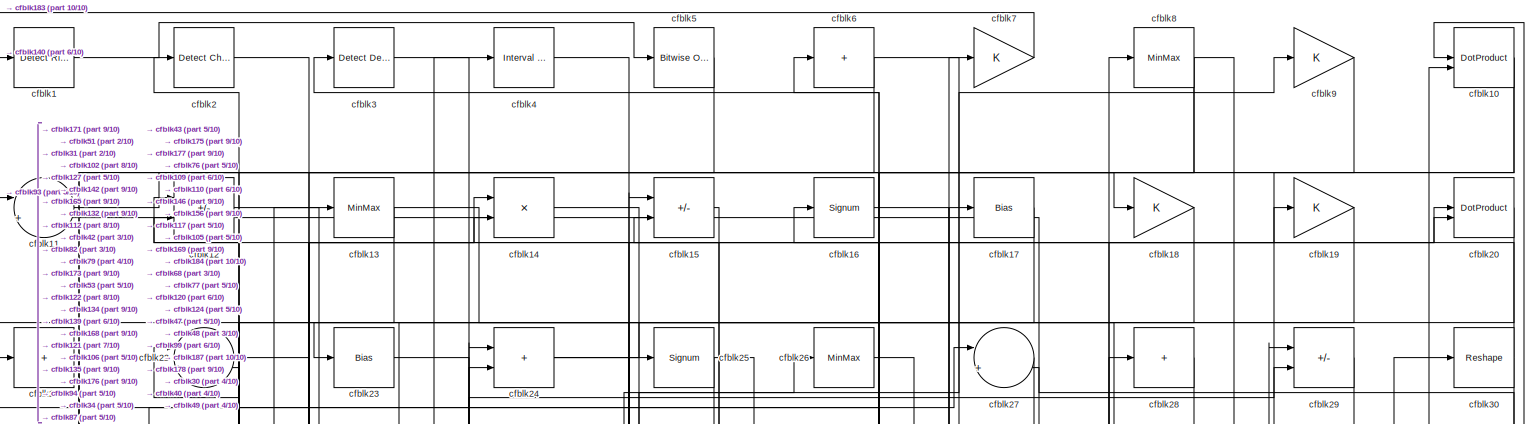
[diagram: root canvas - part 1/10, full width, top band]
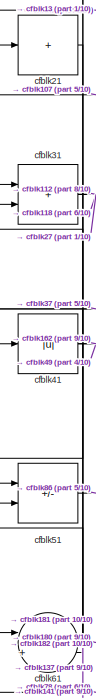
[diagram: root canvas - part 2/10, top left region]
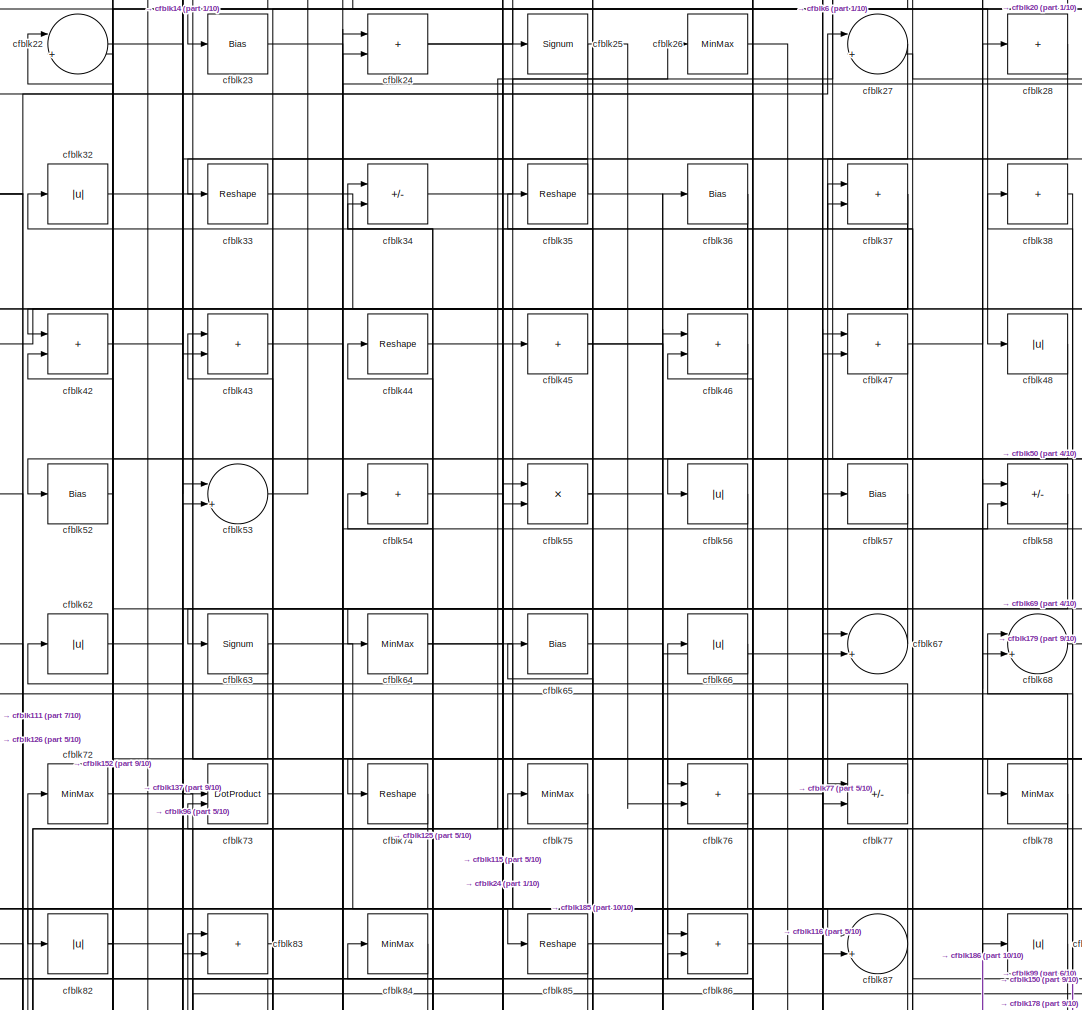
[diagram: root canvas - part 3/10, top center region]
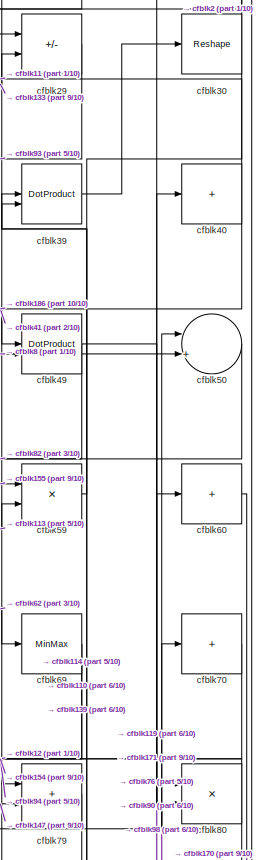
[diagram: root canvas - part 4/10, top right region]
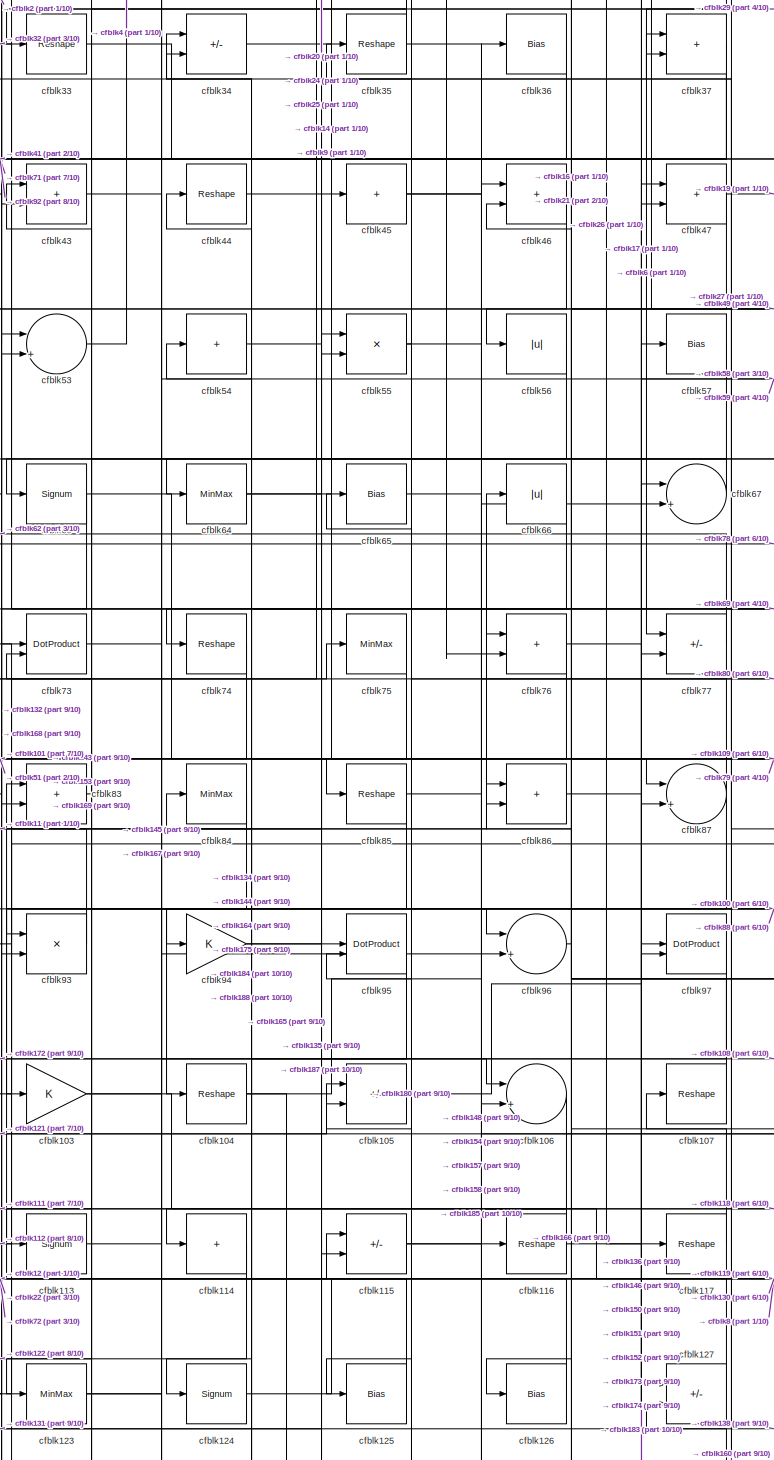
[diagram: root canvas - part 5/10, central region]
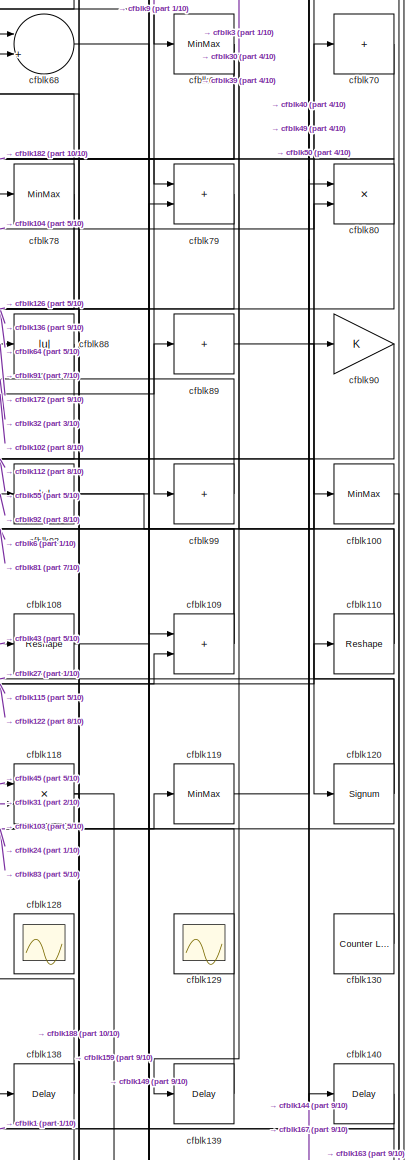
[diagram: root canvas - part 6/10, middle right region]
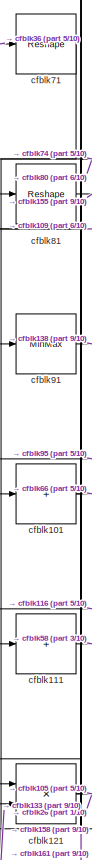
[diagram: root canvas - part 7/10, middle left region]
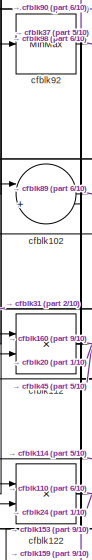
[diagram: root canvas - part 8/10, middle left region]
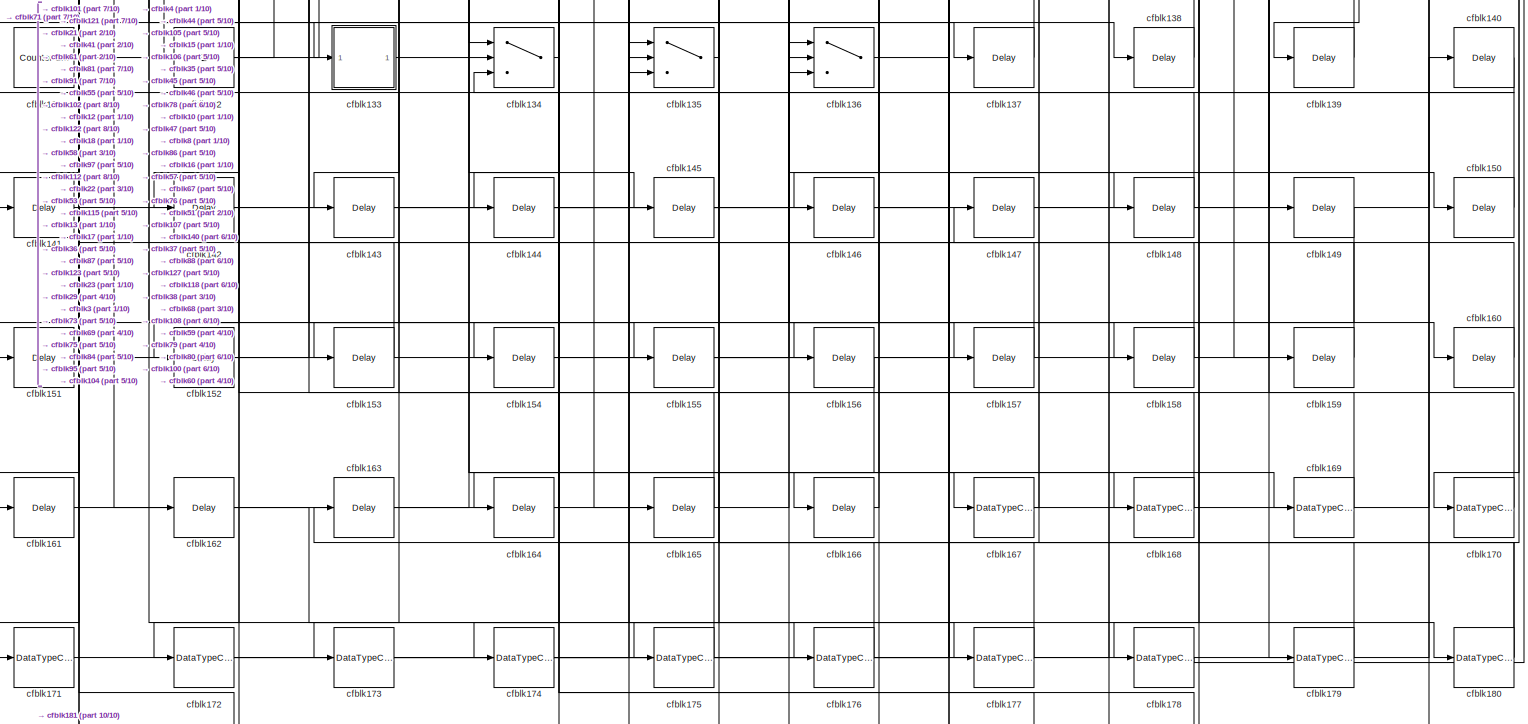
[diagram: root canvas - part 9/10, full width, bottom band]
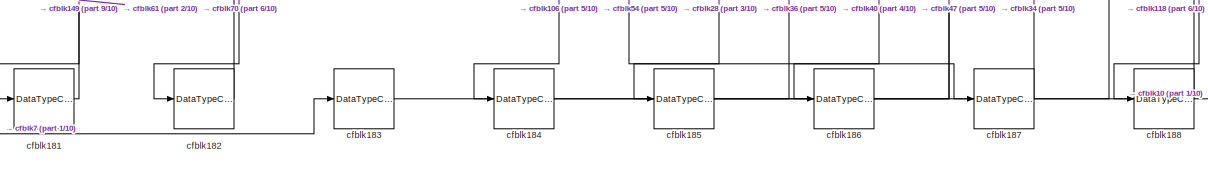
[diagram: root canvas - part 10/10, full width, bottom band]
MODEL slx_cefa9727f244
KIND model
CONFIG AbsTol = auto
CONFIG EnableMultiTasking = off
CONFIG FixedStep = auto
CONFIG MaxStep = auto
CONFIG MinStep = auto
CONFIG RelTol = 1e-3
CONFIG SampleTimeConstraint = Unconstrained
CONFIG SolverName = VariableStepAuto
CONFIG StartTime = 0.0
CONFIG StopTime = 10.0
BLOCK [Reference] cfblk1  REF=hdlsllib/Logic and Bit
Operations/Detect Rise
Positive
  SourceBlock = hdlsllib/Logic and Bit\nOperations/Detect Rise\nPositive
  SourceType = Detect Rise Positive
BLOCK [DotProduct] cfblk10
  OutDataTypeStr = Inherit: Inherit via internal rule
BLOCK [MinMax] cfblk100
BLOCK [Sum] cfblk101
  IconShape = rectangular
  Inputs = +
BLOCK [Sum] cfblk102
  Inputs = |++
BLOCK [Gain] cfblk103
BLOCK [Reshape] cfblk104
BLOCK [Sum] cfblk105
  IconShape = rectangular
  Inputs = +-
BLOCK [Sum] cfblk106
  Inputs = |++
BLOCK [Reshape] cfblk107
BLOCK [Reshape] cfblk108
BLOCK [Sum] cfblk109
  IconShape = rectangular
BLOCK [Sum] cfblk11
  Inputs = |++
BLOCK [Reshape] cfblk110
BLOCK [Sum] cfblk111
  IconShape = rectangular
  Inputs = +
BLOCK [Product] cfblk112
  Inputs = */
  RndMeth = Zero
  SaturateOnIntegerOverflow = on
BLOCK [Signum] cfblk113
BLOCK [Sum] cfblk114
  IconShape = rectangular
  Inputs = +
BLOCK [Sum] cfblk115
  IconShape = rectangular
  Inputs = +-
BLOCK [Reshape] cfblk116
BLOCK [Reshape] cfblk117
BLOCK [Product] cfblk118
  Inputs = */
  RndMeth = Zero
  SaturateOnIntegerOverflow = on
BLOCK [MinMax] cfblk119
BLOCK [Sum] cfblk12
  IconShape = rectangular
  Inputs = +-
BLOCK [Signum] cfblk120
BLOCK [Product] cfblk121
  Inputs = */
  RndMeth = Zero
  SaturateOnIntegerOverflow = on
BLOCK [Product] cfblk122
  Inputs = */
  RndMeth = Zero
  SaturateOnIntegerOverflow = on
BLOCK [MinMax] cfblk123
BLOCK [Signum] cfblk124
BLOCK [Bias] cfblk125
  Bias = 0.0
  SaturateOnIntegerOverflow = off
BLOCK [Bias] cfblk126
  Bias = 0.0
  SaturateOnIntegerOverflow = off
BLOCK [Sum] cfblk127
  IconShape = rectangular
  Inputs = +-
BLOCK [Scope] cfblk128
  Floating = on
  NumInputPorts = 1
  ScopeSpecificationString = Simulink.scopes.TimeScopeBlockCfg('CurrentConfiguration', extmgr.ConfigurationSet(extmgr.Configuration('Core','General UI',true,'FigureColor',[0.156862745098039 0.156862745098039 0.156862745098039]),extmgr.Configuration('Core','Source UI',true),extmgr.Configuration('Sources','WiredSimulink',true,'DataLoggingVariableName','ScopeData1','DataLoggingSaveFormat','StructureWithTime','DataLoggingLimitDat...<+2713ch>
BLOCK [Scope] cfblk129
  Floating = on
  NumInputPorts = 1
  ScopeSpecificationString = Simulink.scopes.TimeScopeBlockCfg('CurrentConfiguration', extmgr.ConfigurationSet(extmgr.Configuration('Core','General UI',true,'FigureColor',[0.156862745098039 0.156862745098039 0.156862745098039]),extmgr.Configuration('Core','Source UI',true),extmgr.Configuration('Sources','WiredSimulink',true,'DataLoggingVariableName','ScopeData1','DataLoggingSaveFormat','StructureWithTime','DataLoggingLimitDat...<+2713ch>
BLOCK [MinMax] cfblk13
BLOCK [Reference] cfblk130  REF=hdlsllib/Sources/Counter
Limited
  SourceBlock = hdlsllib/Sources/Counter\nLimited
  SourceType = Counter Limited
BLOCK [Reference] cfblk131  REF=hdlsllib/Sources/Counter
Limited
  SourceBlock = hdlsllib/Sources/Counter\nLimited
  SourceType = Counter Limited
BLOCK [Ground] cfblk132
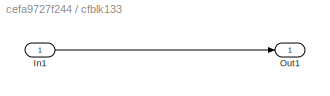
BLOCK [SubSystem] cfblk133
  LibrarySourceBlock = hdlsllib/Ports &\nSubsystems/Subsystem
BLOCK [Inport] cfblk133/In1
BLOCK [Outport] cfblk133/Out1
BLOCK [Switch] cfblk134
  InputSameDT = off
  SaturateOnIntegerOverflow = off
BLOCK [Switch] cfblk135
  InputSameDT = off
  SaturateOnIntegerOverflow = off
BLOCK [Switch] cfblk136
  InputSameDT = off
  SaturateOnIntegerOverflow = off
BLOCK [Delay] cfblk137
  InputPortMap = u0
  SampleTime = 1
BLOCK [Delay] cfblk138
  InputPortMap = u0
  SampleTime = 1
BLOCK [Delay] cfblk139
  InputPortMap = u0
  SampleTime = 1
BLOCK [Product] cfblk14
  Inputs = */
  RndMeth = Zero
  SaturateOnIntegerOverflow = on
BLOCK [Delay] cfblk140
  InputPortMap = u0
  SampleTime = 1
BLOCK [Delay] cfblk141
  InputPortMap = u0
  SampleTime = 1
BLOCK [Delay] cfblk142
  InputPortMap = u0
  SampleTime = 1
BLOCK [Delay] cfblk143
  InputPortMap = u0
  SampleTime = 1
BLOCK [Delay] cfblk144
  InputPortMap = u0
  SampleTime = 1
BLOCK [Delay] cfblk145
  InputPortMap = u0
  SampleTime = 1
BLOCK [Delay] cfblk146
  InputPortMap = u0
  SampleTime = 1
BLOCK [Delay] cfblk147
  InputPortMap = u0
  SampleTime = 1
BLOCK [Delay] cfblk148
  InputPortMap = u0
  SampleTime = 1
BLOCK [Delay] cfblk149
  InputPortMap = u0
  SampleTime = 1
BLOCK [Sum] cfblk15
  IconShape = rectangular
  Inputs = +-
BLOCK [Delay] cfblk150
  InputPortMap = u0
  SampleTime = 1
BLOCK [Delay] cfblk151
  InputPortMap = u0
  SampleTime = 1
BLOCK [Delay] cfblk152
  InputPortMap = u0
  SampleTime = 1
BLOCK [Delay] cfblk153
  InputPortMap = u0
  SampleTime = 1
BLOCK [Delay] cfblk154
  InputPortMap = u0
  SampleTime = 1
BLOCK [Delay] cfblk155
  InputPortMap = u0
  SampleTime = 1
BLOCK [Delay] cfblk156
  InputPortMap = u0
  SampleTime = 1
BLOCK [Delay] cfblk157
  InputPortMap = u0
  SampleTime = 1
BLOCK [Delay] cfblk158
  InputPortMap = u0
  SampleTime = 1
BLOCK [Delay] cfblk159
  InputPortMap = u0
  SampleTime = 1
BLOCK [Signum] cfblk16
BLOCK [Delay] cfblk160
  InputPortMap = u0
  SampleTime = 1
BLOCK [Delay] cfblk161
  InputPortMap = u0
  SampleTime = 1
BLOCK [Delay] cfblk162
  InputPortMap = u0
  SampleTime = 1
BLOCK [Delay] cfblk163
  InputPortMap = u0
  SampleTime = 1
BLOCK [Delay] cfblk164
  InputPortMap = u0
  SampleTime = 1
BLOCK [Delay] cfblk165
  InputPortMap = u0
  SampleTime = 1
BLOCK [Delay] cfblk166
  InputPortMap = u0
  SampleTime = 1
BLOCK [DataTypeConversion] cfblk167
  RndMeth = Floor
  SaturateOnIntegerOverflow = off
BLOCK [DataTypeConversion] cfblk168
  OutDataTypeStr = uint8
  RndMeth = Floor
  SaturateOnIntegerOverflow = off
BLOCK [DataTypeConversion] cfblk169
  OutDataTypeStr = uint8
  RndMeth = Floor
  SaturateOnIntegerOverflow = off
BLOCK [Bias] cfblk17
  Bias = 0.0
  SaturateOnIntegerOverflow = off
BLOCK [DataTypeConversion] cfblk170
  OutDataTypeStr = uint8
  RndMeth = Floor
  SaturateOnIntegerOverflow = off
BLOCK [DataTypeConversion] cfblk171
  OutDataTypeStr = uint8
  RndMeth = Floor
  SaturateOnIntegerOverflow = off
BLOCK [DataTypeConversion] cfblk172
  RndMeth = Floor
  SaturateOnIntegerOverflow = off
BLOCK [DataTypeConversion] cfblk173
  OutDataTypeStr = uint8
  RndMeth = Floor
  SaturateOnIntegerOverflow = off
BLOCK [DataTypeConversion] cfblk174
  OutDataTypeStr = uint8
  RndMeth = Floor
  SaturateOnIntegerOverflow = off
BLOCK [DataTypeConversion] cfblk175
  OutDataTypeStr = uint8
  RndMeth = Floor
  SaturateOnIntegerOverflow = off
BLOCK [DataTypeConversion] cfblk176
  OutDataTypeStr = uint8
  RndMeth = Floor
  SaturateOnIntegerOverflow = off
BLOCK [DataTypeConversion] cfblk177
  OutDataTypeStr = uint8
  RndMeth = Floor
  SaturateOnIntegerOverflow = off
BLOCK [DataTypeConversion] cfblk178
  OutDataTypeStr = uint8
  RndMeth = Floor
  SaturateOnIntegerOverflow = off
BLOCK [DataTypeConversion] cfblk179
  OutDataTypeStr = uint8
  RndMeth = Floor
  SaturateOnIntegerOverflow = off
BLOCK [Gain] cfblk18
BLOCK [DataTypeConversion] cfblk180
  RndMeth = Floor
  SaturateOnIntegerOverflow = off
BLOCK [DataTypeConversion] cfblk181
  OutDataTypeStr = uint8
  RndMeth = Floor
  SaturateOnIntegerOverflow = off
BLOCK [DataTypeConversion] cfblk182
  OutDataTypeStr = uint8
  RndMeth = Floor
  SaturateOnIntegerOverflow = off
BLOCK [DataTypeConversion] cfblk183
  OutDataTypeStr = uint8
  RndMeth = Floor
  SaturateOnIntegerOverflow = off
BLOCK [DataTypeConversion] cfblk184
  OutDataTypeStr = uint8
  RndMeth = Floor
  SaturateOnIntegerOverflow = off
BLOCK [DataTypeConversion] cfblk185
  OutDataTypeStr = uint8
  RndMeth = Floor
  SaturateOnIntegerOverflow = off
BLOCK [DataTypeConversion] cfblk186
  OutDataTypeStr = uint8
  RndMeth = Floor
  SaturateOnIntegerOverflow = off
BLOCK [DataTypeConversion] cfblk187
  RndMeth = Floor
  SaturateOnIntegerOverflow = off
BLOCK [DataTypeConversion] cfblk188
  OutDataTypeStr = uint8
  RndMeth = Floor
  SaturateOnIntegerOverflow = off
BLOCK [Gain] cfblk19
BLOCK [Reference] cfblk2  REF=simulink/Logic and Bit
Operations/Detect
Change
  LibrarySourceBlock = hdlsllib/Logic and Bit\nOperations/Detect\nChange
  SourceBlock = simulink/Logic and Bit\nOperations/Detect\nChange
  SourceType = Detect Change
BLOCK [DotProduct] cfblk20
  OutDataTypeStr = Inherit: Inherit via internal rule
BLOCK [Sum] cfblk21
  IconShape = rectangular
  Inputs = +
BLOCK [Sum] cfblk22
  Inputs = |++
BLOCK [Bias] cfblk23
  Bias = 0.0
  SaturateOnIntegerOverflow = off
BLOCK [Sum] cfblk24
  IconShape = rectangular
BLOCK [Signum] cfblk25
BLOCK [MinMax] cfblk26
BLOCK [Sum] cfblk27
  Inputs = |++
BLOCK [Sum] cfblk28
  IconShape = rectangular
  Inputs = +
BLOCK [Sum] cfblk29
  IconShape = rectangular
  Inputs = +-
BLOCK [Reference] cfblk3  REF=simulink/Logic and Bit
Operations/Detect
Decrease
  LibrarySourceBlock = hdlsllib/Logic and Bit\nOperations/Detect\nDecrease
  SourceBlock = simulink/Logic and Bit\nOperations/Detect\nDecrease
  SourceType = Detect Decrease
BLOCK [Reshape] cfblk30
BLOCK [Sum] cfblk31
  IconShape = rectangular
BLOCK [Abs] cfblk32
  SaturateOnIntegerOverflow = off
BLOCK [Reshape] cfblk33
BLOCK [Sum] cfblk34
  IconShape = rectangular
  Inputs = +-
BLOCK [Reshape] cfblk35
BLOCK [Bias] cfblk36
  Bias = 0.0
  SaturateOnIntegerOverflow = off
BLOCK [Sum] cfblk37
  IconShape = rectangular
BLOCK [Sum] cfblk38
  IconShape = rectangular
  Inputs = +
BLOCK [DotProduct] cfblk39
  OutDataTypeStr = Inherit: Inherit via internal rule
BLOCK [Reference] cfblk4  REF=hdlsllib/Logic and Bit
Operations/Interval Test
  SourceBlock = hdlsllib/Logic and Bit\nOperations/Interval Test
  SourceType = Interval Test
BLOCK [Sum] cfblk40
  IconShape = rectangular
  Inputs = +
BLOCK [Abs] cfblk41
  SaturateOnIntegerOverflow = off
BLOCK [Sum] cfblk42
  IconShape = rectangular
BLOCK [Sum] cfblk43
  IconShape = rectangular
BLOCK [Reshape] cfblk44
BLOCK [Sum] cfblk45
  IconShape = rectangular
  Inputs = +
BLOCK [Sum] cfblk46
  IconShape = rectangular
BLOCK [Sum] cfblk47
  IconShape = rectangular
BLOCK [Abs] cfblk48
  SaturateOnIntegerOverflow = off
BLOCK [DotProduct] cfblk49
  OutDataTypeStr = Inherit: Inherit via internal rule
BLOCK [Reference] cfblk5  REF=simulink/Logic and Bit
Operations/Bitwise
Operator
  LibrarySourceBlock = hdlsllib/Logic and Bit\nOperations/Bitwise\nOperator
  SourceBlock = simulink/Logic and Bit\nOperations/Bitwise\nOperator
  SourceType = Bitwise Operator
BLOCK [Sum] cfblk50
  Inputs = |++
BLOCK [Sum] cfblk51
  IconShape = rectangular
  Inputs = +-
BLOCK [Bias] cfblk52
  Bias = 0.0
  SaturateOnIntegerOverflow = off
BLOCK [Sum] cfblk53
  Inputs = |++
BLOCK [Sum] cfblk54
  IconShape = rectangular
  Inputs = +
BLOCK [Product] cfblk55
  Inputs = */
  RndMeth = Zero
  SaturateOnIntegerOverflow = on
BLOCK [Abs] cfblk56
  SaturateOnIntegerOverflow = off
BLOCK [Bias] cfblk57
  Bias = 0.0
  SaturateOnIntegerOverflow = off
BLOCK [Sum] cfblk58
  IconShape = rectangular
  Inputs = +-
BLOCK [Product] cfblk59
  Inputs = */
  RndMeth = Zero
  SaturateOnIntegerOverflow = on
BLOCK [Sum] cfblk6
  IconShape = rectangular
  Inputs = +
BLOCK [Sum] cfblk60
  IconShape = rectangular
  Inputs = +
BLOCK [Sum] cfblk61
  Inputs = |++
BLOCK [Abs] cfblk62
  SaturateOnIntegerOverflow = off
BLOCK [Signum] cfblk63
BLOCK [MinMax] cfblk64
BLOCK [Bias] cfblk65
  Bias = 0.0
  SaturateOnIntegerOverflow = off
BLOCK [Abs] cfblk66
  SaturateOnIntegerOverflow = off
BLOCK [Sum] cfblk67
  Inputs = |++
BLOCK [Sum] cfblk68
  Inputs = |++
BLOCK [MinMax] cfblk69
BLOCK [Gain] cfblk7
BLOCK [Sum] cfblk70
  IconShape = rectangular
  Inputs = +
BLOCK [Reshape] cfblk71
BLOCK [MinMax] cfblk72
BLOCK [DotProduct] cfblk73
  OutDataTypeStr = Inherit: Inherit via internal rule
BLOCK [Reshape] cfblk74
BLOCK [MinMax] cfblk75
BLOCK [Sum] cfblk76
  IconShape = rectangular
BLOCK [Sum] cfblk77
  IconShape = rectangular
  Inputs = +-
BLOCK [MinMax] cfblk78
BLOCK [Sum] cfblk79
  IconShape = rectangular
BLOCK [MinMax] cfblk8
BLOCK [Product] cfblk80
  Inputs = */
  RndMeth = Zero
  SaturateOnIntegerOverflow = on
BLOCK [Reshape] cfblk81
BLOCK [Abs] cfblk82
  SaturateOnIntegerOverflow = off
BLOCK [Sum] cfblk83
  IconShape = rectangular
BLOCK [MinMax] cfblk84
BLOCK [Reshape] cfblk85
BLOCK [Sum] cfblk86
  IconShape = rectangular
BLOCK [Sum] cfblk87
  Inputs = |++
BLOCK [Abs] cfblk88
  SaturateOnIntegerOverflow = off
BLOCK [Sum] cfblk89
  IconShape = rectangular
  Inputs = +
BLOCK [Gain] cfblk9
BLOCK [Gain] cfblk90
BLOCK [MinMax] cfblk91
BLOCK [MinMax] cfblk92
BLOCK [Product] cfblk93
  Inputs = */
  RndMeth = Zero
  SaturateOnIntegerOverflow = on
BLOCK [Gain] cfblk94
BLOCK [DotProduct] cfblk95
  OutDataTypeStr = Inherit: Inherit via internal rule
BLOCK [Sum] cfblk96
  Inputs = |++
BLOCK [DotProduct] cfblk97
  OutDataTypeStr = Inherit: Inherit via internal rule
BLOCK [Abs] cfblk98
  SaturateOnIntegerOverflow = off
BLOCK [Sum] cfblk99
  IconShape = rectangular
  Inputs = +
LINE cfblk100:1 -> cfblk163:1
NET cfblk101:1 -> cfblk161:1, cfblk66:1
LINE cfblk102:1 -> cfblk89:1
NET cfblk103:1 -> cfblk119:1, cfblk96:2
NET cfblk104:1 -> cfblk165:1, cfblk80:2
LINE cfblk105:1 -> cfblk17:1
LINE cfblk106:1 -> cfblk184:1
LINE cfblk107:1 -> cfblk21:1
LINE cfblk108:1 -> cfblk149:1
NET cfblk109:1 -> cfblk6:1, cfblk81:1
NET cfblk10:1 -> cfblk102:1, cfblk146:1
NET cfblk110:1 -> cfblk39:2, cfblk3:1
LINE cfblk111:1 -> cfblk58:1
NET cfblk112:1 -> cfblk160:1, cfblk20:1, cfblk45:1
LINE cfblk113:1 -> cfblk59:2
LINE cfblk114:1 -> cfblk122:1
NET cfblk115:1 -> cfblk109:2, cfblk158:1
NET cfblk116:1 -> cfblk111:1, cfblk58:2
LINE cfblk117:1 -> cfblk16:1
NET cfblk118:1 -> cfblk159:1, cfblk188:1
LINE cfblk119:1 -> cfblk40:1
LINE cfblk11:1 -> cfblk18:1
NET cfblk120:1 -> cfblk27:2, cfblk70:1
NET cfblk121:1 -> cfblk105:1, cfblk26:1
NET cfblk122:1 -> cfblk110:1, cfblk24:2
NET cfblk123:1 -> cfblk145:1, cfblk75:1
LINE cfblk124:1 -> cfblk8:1
NET cfblk125:1 -> cfblk22:2, cfblk34:1
LINE cfblk126:1 -> cfblk72:1
LINE cfblk127:1 -> cfblk12:1
LINE cfblk12:1 -> cfblk79:1
LINE cfblk130:1 -> cfblk83:1
LINE cfblk131:1 -> cfblk55:1
NET cfblk132:1 -> cfblk115:1, cfblk13:1
LINE cfblk133/In1:1 -> cfblk133/Out1:1
LINE cfblk133:1 -> cfblk29:2
LINE cfblk134:1 -> cfblk84:1
LINE cfblk135:1 -> cfblk95:2
LINE cfblk136:1 -> cfblk57:1
LINE cfblk137:1 -> cfblk51:2
LINE cfblk138:1 -> cfblk127:2
LINE cfblk139:1 -> cfblk24:1
NET cfblk13:1 -> cfblk135:3, cfblk31:1
LINE cfblk140:1 -> cfblk1:1
LINE cfblk141:1 -> cfblk136:2
LINE cfblk142:1 -> cfblk135:2
LINE cfblk143:1 -> cfblk47:2
LINE cfblk144:1 -> cfblk80:1
LINE cfblk145:1 -> cfblk105:2
LINE cfblk146:1 -> cfblk67:1
LINE cfblk147:1 -> cfblk79:2
LINE cfblk148:1 -> cfblk95:1
LINE cfblk149:1 -> cfblk181:1
LINE cfblk14:1 -> cfblk87:1
LINE cfblk150:1 -> cfblk68:1
LINE cfblk151:1 -> cfblk53:2
LINE cfblk152:1 -> cfblk87:2
LINE cfblk153:1 -> cfblk102:2
LINE cfblk154:1 -> cfblk106:2
LINE cfblk155:1 -> cfblk59:1
LINE cfblk156:1 -> cfblk174:1
LINE cfblk157:1 -> cfblk46:1
LINE cfblk158:1 -> cfblk121:2
LINE cfblk159:1 -> cfblk122:2
LINE cfblk15:1 -> cfblk175:1
LINE cfblk160:1 -> cfblk37:2
LINE cfblk161:1 -> cfblk134:2
LINE cfblk162:1 -> cfblk177:1
LINE cfblk163:1 -> cfblk136:1
LINE cfblk164:1 -> cfblk134:3
LINE cfblk165:1 -> cfblk12:2
LINE cfblk166:1 -> cfblk86:2
NET cfblk167:1 -> cfblk107:1, cfblk140:1
LINE cfblk168:1 -> cfblk73:1
LINE cfblk169:1 -> cfblk73:2
LINE cfblk16:1 -> cfblk169:1
LINE cfblk170:1 -> cfblk29:1
LINE cfblk171:1 -> cfblk60:1
NET cfblk172:1 -> cfblk55:2, cfblk88:1
LINE cfblk173:1 -> cfblk97:1
LINE cfblk174:1 -> cfblk97:2
LINE cfblk175:1 -> cfblk44:1
LINE cfblk176:1 -> cfblk15:1
LINE cfblk177:1 -> cfblk15:2
LINE cfblk178:1 -> cfblk10:1
LINE cfblk179:1 -> cfblk38:1
LINE cfblk17:1 -> cfblk173:1
NET cfblk180:1 -> cfblk147:1, cfblk35:1
LINE cfblk181:1 -> cfblk61:1
LINE cfblk182:1 -> cfblk61:2
LINE cfblk183:1 -> cfblk47:1
LINE cfblk184:1 -> cfblk7:1
LINE cfblk185:1 -> cfblk36:1
LINE cfblk186:1 -> cfblk28:1
NET cfblk187:1 -> cfblk10:2, cfblk34:2
LINE cfblk188:1 -> cfblk54:1
LINE cfblk18:1 -> cfblk142:1
LINE cfblk19:1 -> cfblk23:1
LINE cfblk1:1 -> cfblk5:1
LINE cfblk20:1 -> cfblk42:1
LINE cfblk21:1 -> cfblk141:1
LINE cfblk22:1 -> cfblk137:1
LINE cfblk23:1 -> cfblk134:1
NET cfblk24:1 -> cfblk106:1, cfblk48:1
NET cfblk25:1 -> cfblk43:2, cfblk76:2
LINE cfblk26:1 -> cfblk117:1
LINE cfblk27:1 -> cfblk77:1
LINE cfblk28:1 -> cfblk185:1
LINE cfblk29:1 -> cfblk93:1
LINE cfblk2:1 -> cfblk53:1
NET cfblk30:1 -> cfblk139:1, cfblk2:1
NET cfblk31:1 -> cfblk112:1, cfblk118:2, cfblk27:1
LINE cfblk32:1 -> cfblk115:2
LINE cfblk33:1 -> cfblk77:2
LINE cfblk34:1 -> cfblk9:1
NET cfblk35:1 -> cfblk148:1, cfblk33:1
NET cfblk36:1 -> cfblk143:1, cfblk71:1
NET cfblk37:1 -> cfblk41:1, cfblk74:1, cfblk92:1
LINE cfblk38:1 -> cfblk178:1
LINE cfblk39:1 -> cfblk30:1
LINE cfblk3:1 -> cfblk168:1
NET cfblk40:1 -> cfblk11:2, cfblk186:1
NET cfblk41:1 -> cfblk162:1, cfblk49:1
LINE cfblk42:1 -> cfblk14:1
LINE cfblk43:1 -> cfblk108:1
LINE cfblk44:1 -> cfblk135:1
NET cfblk45:1 -> cfblk118:1, cfblk157:1
LINE cfblk46:1 -> cfblk56:1
NET cfblk47:1 -> cfblk166:1, cfblk19:1
LINE cfblk48:1 -> cfblk52:1
NET cfblk49:1 -> cfblk76:1, cfblk90:1
LINE cfblk4:1 -> cfblk176:1
LINE cfblk50:1 -> cfblk82:1
LINE cfblk51:1 -> cfblk86:1
LINE cfblk52:1 -> cfblk22:1
LINE cfblk53:1 -> cfblk4:1
LINE cfblk54:1 -> cfblk187:1
NET cfblk55:1 -> cfblk100:1, cfblk125:1
LINE cfblk56:1 -> cfblk63:1
LINE cfblk57:1 -> cfblk113:1
LINE cfblk58:1 -> cfblk152:1
LINE cfblk59:1 -> cfblk39:1
LINE cfblk5:1 -> cfblk51:1
LINE cfblk60:1 -> cfblk170:1
LINE cfblk61:1 -> cfblk180:1
LINE cfblk62:1 -> cfblk69:1
NET cfblk63:1 -> cfblk83:2, cfblk85:1
NET cfblk64:1 -> cfblk109:1, cfblk37:1
LINE cfblk65:1 -> cfblk116:1
LINE cfblk66:1 -> cfblk124:1
LINE cfblk67:1 -> cfblk64:1
LINE cfblk68:1 -> cfblk179:1
NET cfblk69:1 -> cfblk154:1, cfblk94:1
NET cfblk6:1 -> cfblk68:2, cfblk93:2
LINE cfblk70:1 -> cfblk182:1
LINE cfblk71:1 -> cfblk133:1
LINE cfblk72:1 -> cfblk96:1
LINE cfblk73:1 -> cfblk167:1
LINE cfblk74:1 -> cfblk101:1
LINE cfblk75:1 -> cfblk144:1
NET cfblk76:1 -> cfblk150:1, cfblk151:1
LINE cfblk77:1 -> cfblk62:1
NET cfblk78:1 -> cfblk126:1, cfblk136:3, cfblk31:2
LINE cfblk79:1 -> cfblk114:1
LINE cfblk7:1 -> cfblk183:1
NET cfblk80:1 -> cfblk78:1, cfblk91:1
LINE cfblk81:1 -> cfblk155:1
NET cfblk82:1 -> cfblk14:2, cfblk42:2
LINE cfblk83:1 -> cfblk43:1
LINE cfblk84:1 -> cfblk104:1
NET cfblk85:1 -> cfblk123:1, cfblk67:2
LINE cfblk86:1 -> cfblk127:1
NET cfblk87:1 -> cfblk153:1, cfblk65:1
LINE cfblk88:1 -> cfblk103:1
LINE cfblk89:1 -> cfblk120:1
NET cfblk8:1 -> cfblk156:1, cfblk171:1, cfblk49:2
LINE cfblk90:1 -> cfblk112:2
LINE cfblk91:1 -> cfblk138:1
LINE cfblk92:1 -> cfblk98:1
LINE cfblk93:1 -> cfblk11:1
NET cfblk94:1 -> cfblk20:2, cfblk25:1
NET cfblk95:1 -> cfblk121:1, cfblk164:1
LINE cfblk96:1 -> cfblk46:2
LINE cfblk97:1 -> cfblk172:1
NET cfblk98:1 -> cfblk50:1, cfblk50:2
LINE cfblk99:1 -> cfblk32:1
LINE cfblk9:1 -> cfblk99:1
note: NET lines group one-source signal fan-out (src -> all destinations, sorted); 1:1 wires keep LINE
